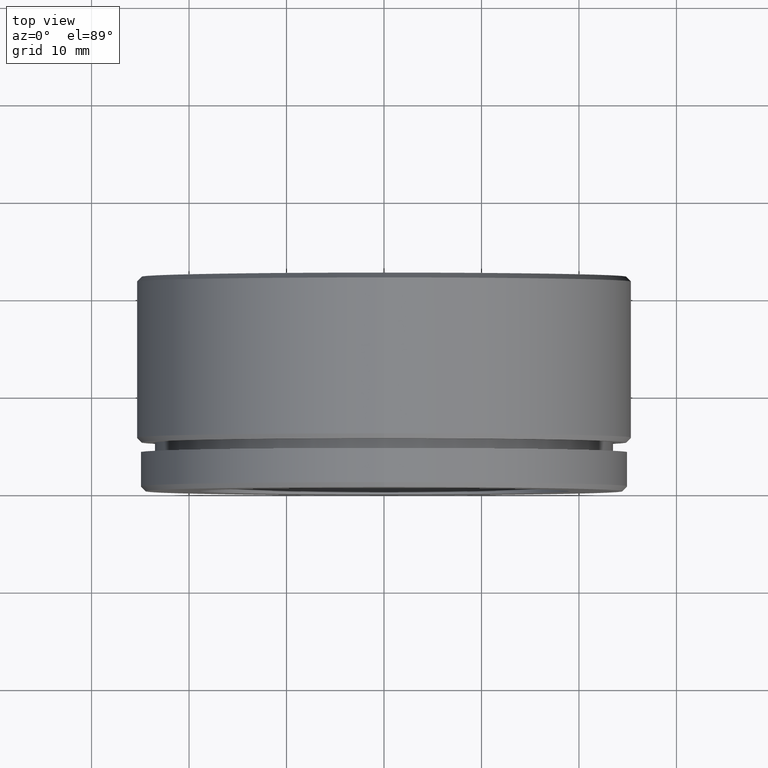
[diagram: clean part render]
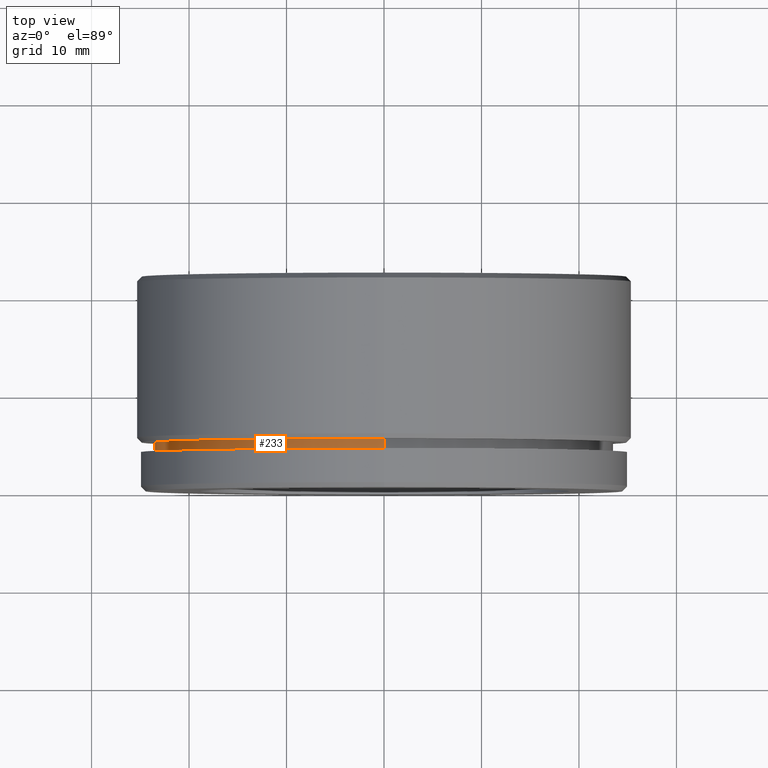
[diagram: same view with one face highlighted and labeled with its STEP entity id]
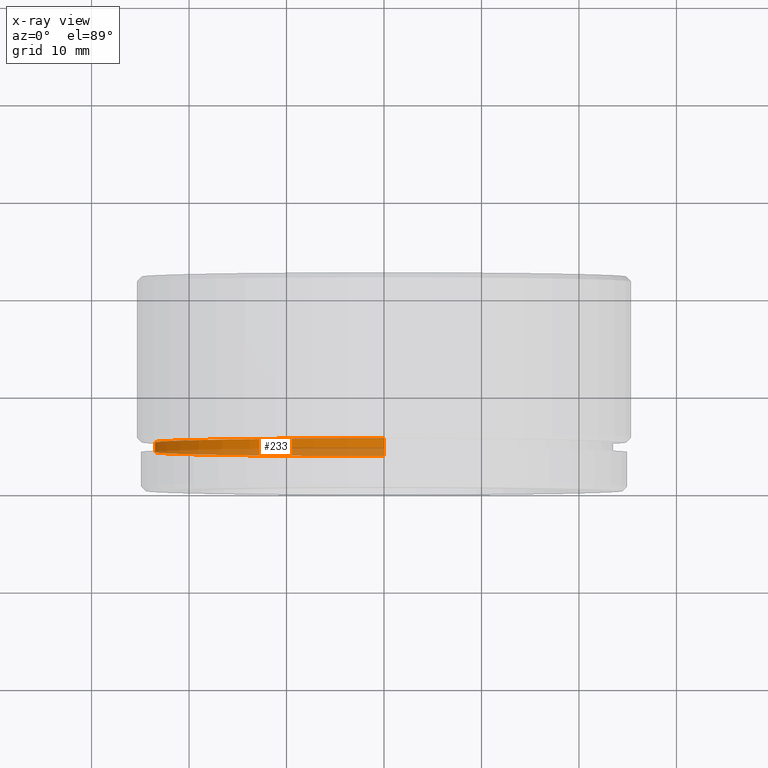
[diagram: x-ray of the same camera — body ghosted, the highlighted face saturated]
A machine part, top view. The second image highlights one B-rep face of the part: STEP entity #233.
The next image is the same camera in x-ray: the body ghosted, the highlighted face saturated — about 39% of this face is hidden behind the body in this view.
In plain terms, the highlighted cylindrical surface (partial cylindrical patch) has radius 23.5 mm, axis along (-0, -1, -0).
Its self-contained STEP definition (entity closure, byte-faithful):
#17 = EDGE_CURVE ( 'NONE', #397, #837, #698, .T. ) ;
#38 = VERTEX_POINT ( 'NONE', #39 ) ;
#39 = CARTESIAN_POINT ( 'NONE',  ( 2.877919977996279900E-015, 4.000000000000000000, 23.49999999999999600 ) ) ;
#93 = CIRCLE ( 'NONE', #961, 23.50000000000000000 ) ;
#100 = CARTESIAN_POINT ( 'NONE',  ( 0.0000000000000000000, 5.000000000000000000, -23.50000000000000000 ) ) ;
#135 = DIRECTION ( 'NONE',  ( 0.0000000000000000000, 0.0000000000000000000, -1.000000000000000000 ) ) ;
#201 = EDGE_CURVE ( 'NONE', #542, #397, #93, .T. ) ;
#233 = ADVANCED_FACE ( 'NONE', ( #807 ), #999, .T. ) ;
#247 = CARTESIAN_POINT ( 'NONE',  ( 0.0000000000000000000, 5.000000000000000000, 0.0000000000000000000 ) ) ;
#281 = ORIENTED_EDGE ( 'NONE', *, *, #17, .T. ) ;
#302 = CARTESIAN_POINT ( 'NONE',  ( 0.0000000000000000000, 4.000000000000000000, 0.0000000000000000000 ) ) ;
#313 = DIRECTION ( 'NONE',  ( -0.0000000000000000000, -1.000000000000000000, -0.0000000000000000000 ) ) ;
#382 = ORIENTED_EDGE ( 'NONE', *, *, #900, .F. ) ;
#397 = VERTEX_POINT ( 'NONE', #100 ) ;
#420 = LINE ( 'NONE', #517, #458 ) ;
#458 = VECTOR ( 'NONE', #800, 1000.000000000000000 ) ;
#463 = DIRECTION ( 'NONE',  ( -0.0000000000000000000, -1.000000000000000000, -0.0000000000000000000 ) ) ;
#517 = CARTESIAN_POINT ( 'NONE',  ( 2.877919977996280300E-015, 0.0000000000000000000, 23.50000000000000000 ) ) ;
#542 = VERTEX_POINT ( 'NONE', #1088 ) ;
#550 = CARTESIAN_POINT ( 'NONE',  ( 0.0000000000000000000, 0.0000000000000000000, 0.0000000000000000000 ) ) ;
#561 = CARTESIAN_POINT ( 'NONE',  ( 0.0000000000000000000, 0.0000000000000000000, -23.50000000000000000 ) ) ;
#693 = CIRCLE ( 'NONE', #1046, 23.49999999999999600 ) ;
#698 = LINE ( 'NONE', #561, #1096 ) ;
#702 = ORIENTED_EDGE ( 'NONE', *, *, #201, .T. ) ;
#704 = CARTESIAN_POINT ( 'NONE',  ( 0.0000000000000000000, 4.000000000000000000, -23.49999999999999600 ) ) ;
#800 = DIRECTION ( 'NONE',  ( -0.0000000000000000000, -1.000000000000000000, -0.0000000000000000000 ) ) ;
#807 = FACE_OUTER_BOUND ( 'NONE', #875, .T. ) ;
#831 = DIRECTION ( 'NONE',  ( -0.0000000000000000000, -1.000000000000000000, -0.0000000000000000000 ) ) ;
#837 = VERTEX_POINT ( 'NONE', #704 ) ;
#875 = EDGE_LOOP ( 'NONE', ( #914, #702, #281, #382 ) ) ;
#887 = DIRECTION ( 'NONE',  ( -0.0000000000000000000, -1.000000000000000000, -0.0000000000000000000 ) ) ;
#900 = EDGE_CURVE ( 'NONE', #38, #837, #693, .T. ) ;
#914 = ORIENTED_EDGE ( 'NONE', *, *, #1075, .F. ) ;
#961 = AXIS2_PLACEMENT_3D ( 'NONE', #247, #887, #1057 ) ;
#988 = DIRECTION ( 'NONE',  ( 0.0000000000000000000, 0.0000000000000000000, -1.000000000000000000 ) ) ;
#999 = CYLINDRICAL_SURFACE ( 'NONE', #1020, 23.50000000000000000 ) ;
#1020 = AXIS2_PLACEMENT_3D ( 'NONE', #550, #463, #988 ) ;
#1046 = AXIS2_PLACEMENT_3D ( 'NONE', #302, #831, #135 ) ;
#1057 = DIRECTION ( 'NONE',  ( 0.0000000000000000000, 0.0000000000000000000, -1.000000000000000000 ) ) ;
#1075 = EDGE_CURVE ( 'NONE', #542, #38, #420, .T. ) ;
#1088 = CARTESIAN_POINT ( 'NONE',  ( 2.877919977996280300E-015, 5.000000000000000000, 23.50000000000000000 ) ) ;
#1096 = VECTOR ( 'NONE', #313, 1000.000000000000000 ) ;